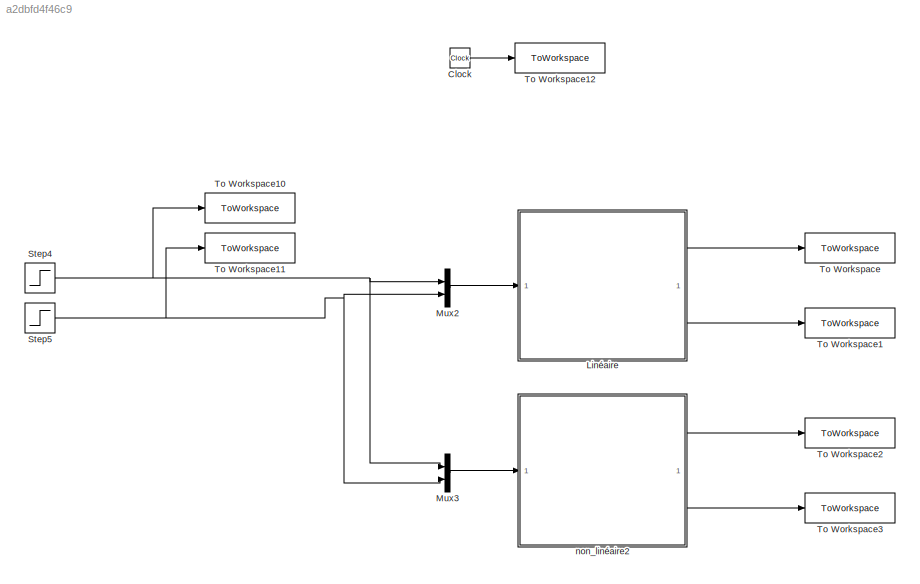
MODEL slx_a2dbfd4f46c9
KIND model
CONFIG AbsTol = auto
CONFIG EnableMultiTasking = off
CONFIG FixedStep = 1e-4
CONFIG MaxStep = auto
CONFIG MinStep = auto
CONFIG RelTol = 1e-3
CONFIG SampleTimeConstraint = Unconstrained
CONFIG SolverName = FixedStepAuto
CONFIG StartTime = 0.0
CONFIG StopTime = 20
BLOCK [Clock] Clock
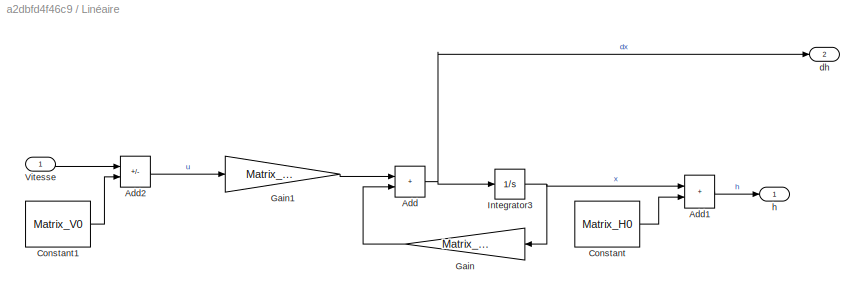
BLOCK [SubSystem] Linéaire
BLOCK [Sum] Linéaire/Add
  IconShape = rectangular
BLOCK [Sum] Linéaire/Add1
  IconShape = rectangular
BLOCK [Sum] Linéaire/Add2
  IconShape = rectangular
  Inputs = +-
BLOCK [Constant] Linéaire/Constant
  Value = Matrix_H0
BLOCK [Constant] Linéaire/Constant1
  Value = Matrix_V0
BLOCK [Gain] Linéaire/Gain
  Gain = Matrix_dX_X
  Multiplication = Matrix(K*u)
  NameLocation = top
BLOCK [Gain] Linéaire/Gain1
  Gain = Matrix_dX_U
  Multiplication = Matrix(K*u) (u vector)
BLOCK [Integrator] Linéaire/Integrator3
BLOCK [Inport] Linéaire/Vitesse
BLOCK [Outport] Linéaire/dh
  Port = 2
BLOCK [Outport] Linéaire/h
BLOCK [Mux] Mux2
  DisplayOption = bar
  Inputs = 2
BLOCK [Mux] Mux3
  DisplayOption = bar
  Inputs = 2
BLOCK [Step] Step4
  After = Com_V1
  Before = V01
  SampleTime = 0
  Time = delay_Com_V1
BLOCK [Step] Step5
  After = Com_V2
  Before = V02
  SampleTime = 0
  Time = delay_Com_V2
BLOCK [ToWorkspace] To Workspace
  FixptAsFi = on
  MaxDataPoints = inf
  SampleTime = -1
  SaveFormat = Timeseries
  VariableName = h_ouvert_lineaire
BLOCK [ToWorkspace] To Workspace1
  FixptAsFi = on
  MaxDataPoints = inf
  SampleTime = -1
  SaveFormat = Timeseries
  VariableName = dh_ouvert_lineaire
BLOCK [ToWorkspace] To Workspace10
  FixptAsFi = on
  MaxDataPoints = inf
  SampleTime = -1
  SaveFormat = Timeseries
  VariableName = consigne_V1
BLOCK [ToWorkspace] To Workspace11
  FixptAsFi = on
  MaxDataPoints = inf
  SampleTime = -1
  SaveFormat = Timeseries
  VariableName = consigne_V2
BLOCK [ToWorkspace] To Workspace12
  FixptAsFi = on
  MaxDataPoints = inf
  SampleTime = -1
  SaveFormat = Timeseries
  VariableName = time
BLOCK [ToWorkspace] To Workspace2
  FixptAsFi = on
  MaxDataPoints = inf
  SampleTime = -1
  SaveFormat = Timeseries
  VariableName = h_ouvert_non_lineaire
BLOCK [ToWorkspace] To Workspace3
  FixptAsFi = on
  MaxDataPoints = inf
  SampleTime = -1
  SaveFormat = Timeseries
  VariableName = dh_ouvert_non_lineaire
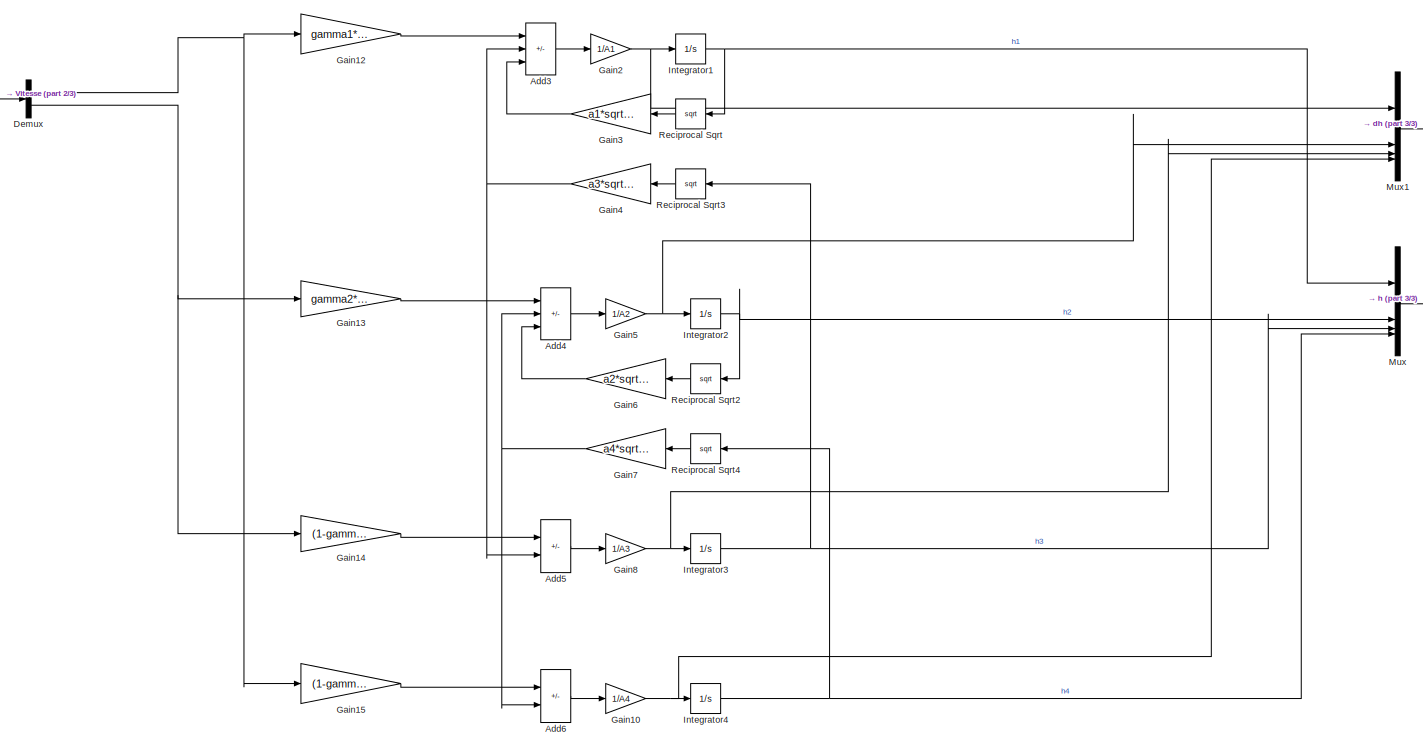
[diagram: non_linéaire2 - part 1/3, most of the canvas]
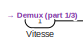
[diagram: non_linéaire2 - part 2/3, top left region]
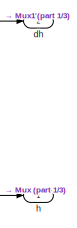
[diagram: non_linéaire2 - part 3/3, top right region]
BLOCK [SubSystem] non_linéaire2
BLOCK [Sum] non_linéaire2/Add3
  IconShape = rectangular
  Inputs = ++-
BLOCK [Sum] non_linéaire2/Add4
  IconShape = rectangular
  Inputs = ++-
BLOCK [Sum] non_linéaire2/Add5
  IconShape = rectangular
  Inputs = +-
BLOCK [Sum] non_linéaire2/Add6
  IconShape = rectangular
  Inputs = +-
BLOCK [Demux] non_linéaire2/Demux
  Outputs = 2
BLOCK [Gain] non_linéaire2/Gain10
  Gain = 1/A4
BLOCK [Gain] non_linéaire2/Gain12
  Gain = gamma1*k1
BLOCK [Gain] non_linéaire2/Gain13
  Gain = gamma2*k2
BLOCK [Gain] non_linéaire2/Gain14
  Gain = (1-gamma2)*k2
BLOCK [Gain] non_linéaire2/Gain15
  Gain = (1-gamma1)*k1
BLOCK [Gain] non_linéaire2/Gain2
  Gain = 1/A1
BLOCK [Gain] non_linéaire2/Gain3
  Gain = a1*sqrt(2*g)
  NameLocation = top
BLOCK [Gain] non_linéaire2/Gain4
  Gain = a3*sqrt(2*g)
  NameLocation = top
BLOCK [Gain] non_linéaire2/Gain5
  Gain = 1/A2
BLOCK [Gain] non_linéaire2/Gain6
  Gain = a2*sqrt(2*g)
  NameLocation = top
BLOCK [Gain] non_linéaire2/Gain7
  Gain = a4*sqrt(2*g)
  NameLocation = top
BLOCK [Gain] non_linéaire2/Gain8
  Gain = 1/A3
BLOCK [Integrator] non_linéaire2/Integrator1
  InitialCondition = H01^2
BLOCK [Integrator] non_linéaire2/Integrator2
  InitialCondition = H02^2
BLOCK [Integrator] non_linéaire2/Integrator3
  InitialCondition = H03^2
BLOCK [Integrator] non_linéaire2/Integrator4
  InitialCondition = H04^2
BLOCK [Mux] non_linéaire2/Mux
  DisplayOption = bar
BLOCK [Mux] non_linéaire2/Mux1
  DisplayOption = bar
BLOCK [Sqrt] non_linéaire2/Reciprocal Sqrt
  NameLocation = top
BLOCK [Sqrt] non_linéaire2/Reciprocal Sqrt2
  NameLocation = top
BLOCK [Sqrt] non_linéaire2/Reciprocal Sqrt3
  NameLocation = top
BLOCK [Sqrt] non_linéaire2/Reciprocal Sqrt4
  NameLocation = top
BLOCK [Inport] non_linéaire2/Vitesse
BLOCK [Outport] non_linéaire2/dh
  Port = 2
BLOCK [Outport] non_linéaire2/h
LINE Clock:1 -> To Workspace12:1
LINE Linéaire/Add1:1 -> Linéaire/h:1
LINE Linéaire/Add2:1 -> Linéaire/Gain1:1
NET Linéaire/Add:1 -> Linéaire/Integrator3:1, Linéaire/dh:1
LINE Linéaire/Constant1:1 -> Linéaire/Add2:2
LINE Linéaire/Constant:1 -> Linéaire/Add1:2
LINE Linéaire/Gain1:1 -> Linéaire/Add:1
LINE Linéaire/Gain:1 -> Linéaire/Add:2
NET Linéaire/Integrator3:1 -> Linéaire/Add1:1, Linéaire/Gain:1
LINE Linéaire/Vitesse:1 -> Linéaire/Add2:1
LINE Linéaire:1 -> To Workspace:1
LINE Linéaire:2 -> To Workspace1:1
LINE Mux2:1 -> Linéaire:1
LINE Mux3:1 -> non_linéaire2:1
NET Step4:1 -> Mux2:1, Mux3:1, To Workspace10:1
NET Step5:1 -> Mux2:2, Mux3:2, To Workspace11:1
LINE non_linéaire2/Add3:1 -> non_linéaire2/Gain2:1
LINE non_linéaire2/Add4:1 -> non_linéaire2/Gain5:1
LINE non_linéaire2/Add5:1 -> non_linéaire2/Gain8:1
LINE non_linéaire2/Add6:1 -> non_linéaire2/Gain10:1
NET non_linéaire2/Demux:1 -> non_linéaire2/Gain12:1, non_linéaire2/Gain15:1
NET non_linéaire2/Demux:2 -> non_linéaire2/Gain13:1, non_linéaire2/Gain14:1
NET non_linéaire2/Gain10:1 -> non_linéaire2/Integrator4:1, non_linéaire2/Mux1:4
LINE non_linéaire2/Gain12:1 -> non_linéaire2/Add3:1
LINE non_linéaire2/Gain13:1 -> non_linéaire2/Add4:1
LINE non_linéaire2/Gain14:1 -> non_linéaire2/Add5:1
LINE non_linéaire2/Gain15:1 -> non_linéaire2/Add6:1
NET non_linéaire2/Gain2:1 -> non_linéaire2/Integrator1:1, non_linéaire2/Mux1:1
LINE non_linéaire2/Gain3:1 -> non_linéaire2/Add3:3
NET non_linéaire2/Gain4:1 -> non_linéaire2/Add3:2, non_linéaire2/Add5:2
NET non_linéaire2/Gain5:1 -> non_linéaire2/Integrator2:1, non_linéaire2/Mux1:2
LINE non_linéaire2/Gain6:1 -> non_linéaire2/Add4:3
NET non_linéaire2/Gain7:1 -> non_linéaire2/Add4:2, non_linéaire2/Add6:2
NET non_linéaire2/Gain8:1 -> non_linéaire2/Integrator3:1, non_linéaire2/Mux1:3
NET non_linéaire2/Integrator1:1 -> non_linéaire2/Mux:1, non_linéaire2/Reciprocal Sqrt:1
NET non_linéaire2/Integrator2:1 -> non_linéaire2/Mux:2, non_linéaire2/Reciprocal Sqrt2:1
NET non_linéaire2/Integrator3:1 -> non_linéaire2/Mux:3, non_linéaire2/Reciprocal Sqrt3:1
NET non_linéaire2/Integrator4:1 -> non_linéaire2/Mux:4, non_linéaire2/Reciprocal Sqrt4:1
LINE non_linéaire2/Mux1:1 -> non_linéaire2/dh:1
LINE non_linéaire2/Mux:1 -> non_linéaire2/h:1
LINE non_linéaire2/Reciprocal Sqrt2:1 -> non_linéaire2/Gain6:1
LINE non_linéaire2/Reciprocal Sqrt3:1 -> non_linéaire2/Gain4:1
LINE non_linéaire2/Reciprocal Sqrt4:1 -> non_linéaire2/Gain7:1
LINE non_linéaire2/Reciprocal Sqrt:1 -> non_linéaire2/Gain3:1
LINE non_linéaire2/Vitesse:1 -> non_linéaire2/Demux:1
LINE non_linéaire2:1 -> To Workspace2:1
LINE non_linéaire2:2 -> To Workspace3:1
note: NET lines group one-source signal fan-out (src -> all destinations, sorted); 1:1 wires keep LINE
